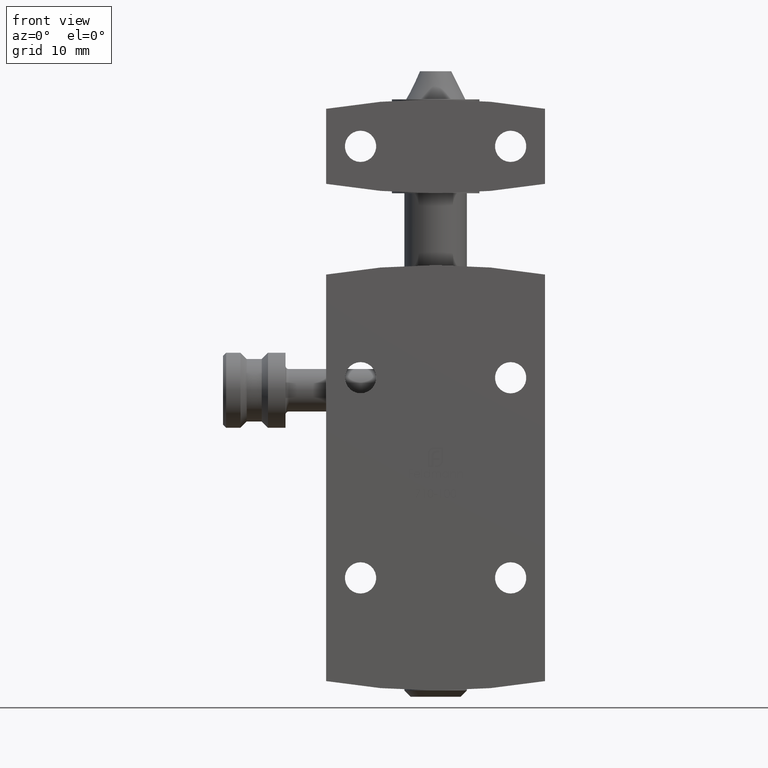
[diagram: clean part render]
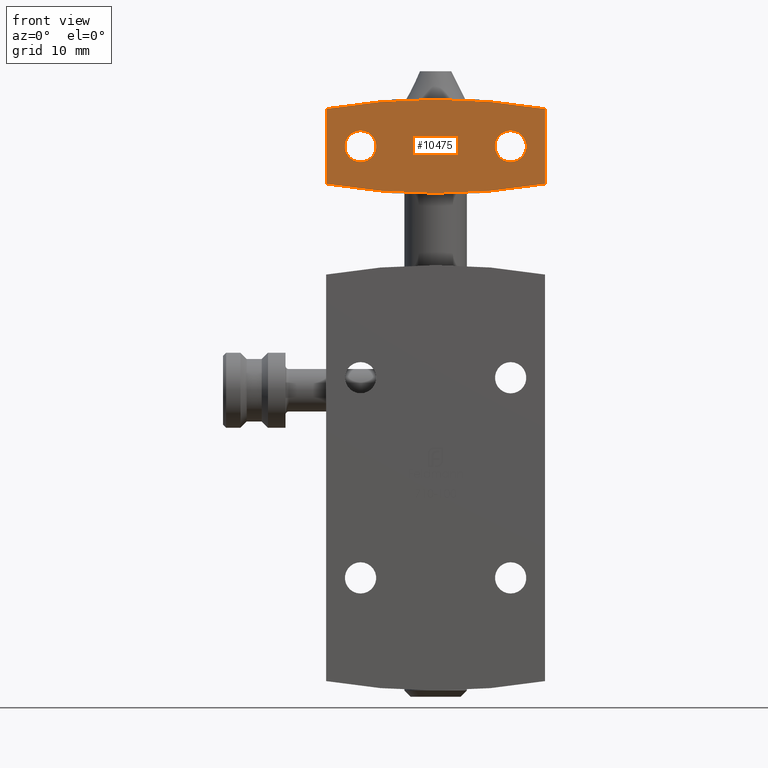
[diagram: same view with one face highlighted and labeled with its STEP entity id]
A machine part, front view. The second image highlights one B-rep face of the part: STEP entity #10475.
In plain terms, the highlighted planar face has unit normal (0, 1, 0).
Its self-contained STEP definition (entity closure, byte-faithful):
#379 = VERTEX_POINT ( 'NONE', #8350 ) ;
#1290 = EDGE_CURVE ( 'NONE', #379, #379, #1424, .T. ) ;
#1424 = CIRCLE ( 'NONE', #6433, 2.500000000000000000 ) ;
#1482 = EDGE_CURVE ( 'NONE', #1718, #6369, #5065, .T. ) ;
#1671 = CARTESIAN_POINT ( 'NONE',  ( -17.50000000000000000, 0.000000000000000000, 5.999999999999990230 ) ) ;
#1718 = VERTEX_POINT ( 'NONE', #2961 ) ;
#2651 = DIRECTION ( 'NONE',  ( 0.000000000000000000, 1.000000000000000000, 0.000000000000000000 ) ) ;
#2699 = VECTOR ( 'NONE', #15099, 1000.000000000000000 ) ;
#2961 = CARTESIAN_POINT ( 'NONE',  ( -17.50000000000000000, 0.000000000000000000, -5.999999999999990230 ) ) ;
#3391 = CARTESIAN_POINT ( 'NONE',  ( -2.573905222315729581E-25, 0.000000000000000000, -95.33333333333305859 ) ) ;
#3462 = CARTESIAN_POINT ( 'NONE',  ( -17.50000000000000000, 0.000000000000000000, 5.999999999999990230 ) ) ;
#3472 = CARTESIAN_POINT ( 'NONE',  ( 17.50000000000000000, 0.000000000000000000, -5.999999999999999112 ) ) ;
#3553 = DIRECTION ( 'NONE',  ( 0.000000000000000000, 0.000000000000000000, 1.000000000000000000 ) ) ;
#3851 = ORIENTED_EDGE ( 'NONE', *, *, #11259, .F. ) ;
#4083 = VECTOR ( 'NONE', #4546, 1000.000000000000000 ) ;
#4311 = EDGE_LOOP ( 'NONE', ( #4872, #4848, #14581, #3851 ) ) ;
#4483 = DIRECTION ( 'NONE',  ( 0.000000000000000000, -0.000000000000000000, 1.000000000000000000 ) ) ;
#4546 = DIRECTION ( 'NONE',  ( -0.000000000000000000, -0.000000000000000000, -1.000000000000000000 ) ) ;
#4795 = DIRECTION ( 'NONE',  ( 0.000000000000000000, 1.000000000000000000, 0.000000000000000000 ) ) ;
#4848 = ORIENTED_EDGE ( 'NONE', *, *, #1482, .F. ) ;
#4872 = ORIENTED_EDGE ( 'NONE', *, *, #9986, .F. ) ;
#5065 = LINE ( 'NONE', #3462, #2699 ) ;
#5358 = ORIENTED_EDGE ( 'NONE', *, *, #1290, .T. ) ;
#5593 = ORIENTED_EDGE ( 'NONE', *, *, #10986, .T. ) ;
#5811 = VERTEX_POINT ( 'NONE', #11039 ) ;
#6369 = VERTEX_POINT ( 'NONE', #1671 ) ;
#6400 = AXIS2_PLACEMENT_3D ( 'NONE', #11825, #2651, #7196 ) ;
#6427 = CARTESIAN_POINT ( 'NONE',  ( 17.50000000000000000, 0.000000000000000000, 6.000000000000000000 ) ) ;
#6433 = AXIS2_PLACEMENT_3D ( 'NONE', #8193, #12724, #3553 ) ;
#6971 = AXIS2_PLACEMENT_3D ( 'NONE', #3391, #11494, #10423 ) ;
#7196 = DIRECTION ( 'NONE',  ( 0.000000000000000000, 0.000000000000000000, 1.000000000000000000 ) ) ;
#7456 = DIRECTION ( 'NONE',  ( 0.000000000000000000, 0.000000000000000000, -1.000000000000000000 ) ) ;
#7768 = AXIS2_PLACEMENT_3D ( 'NONE', #9469, #4795, #4483 ) ;
#8193 = CARTESIAN_POINT ( 'NONE',  ( -11.99999999999999822, 0.000000000000000000, 0.000000000000000000 ) ) ;
#8288 = LINE ( 'NONE', #3472, #4083 ) ;
#8349 = AXIS2_PLACEMENT_3D ( 'NONE', #12201, #9787, #7456 ) ;
#8350 = CARTESIAN_POINT ( 'NONE',  ( -11.99999999999999822, 0.000000000000000000, 2.500000000000000000 ) ) ;
#8386 = PLANE ( 'NONE',  #7768 ) ;
#8790 = EDGE_CURVE ( 'NONE', #12323, #1718, #12023, .T. ) ;
#9376 = EDGE_LOOP ( 'NONE', ( #5593 ) ) ;
#9459 = FACE_BOUND ( 'NONE', #9376, .T. ) ;
#9469 = CARTESIAN_POINT ( 'NONE',  ( -2.573905222315729581E-25, 0.000000000000000000, -95.33333333333305859 ) ) ;
#9787 = DIRECTION ( 'NONE',  ( 0.000000000000000000, 1.000000000000000000, -0.000000000000000000 ) ) ;
#9986 = EDGE_CURVE ( 'NONE', #6369, #10105, #14602, .T. ) ;
#10105 = VERTEX_POINT ( 'NONE', #6427 ) ;
#10423 = DIRECTION ( 'NONE',  ( 0.000000000000000000, 0.000000000000000000, 1.000000000000000000 ) ) ;
#10475 = ADVANCED_FACE ( 'NONE', ( #12402, #9459, #10746 ), #8386, .F. ) ;
#10544 = CIRCLE ( 'NONE', #6400, 2.500000000000000000 ) ;
#10746 = FACE_BOUND ( 'NONE', #14832, .T. ) ;
#10986 = EDGE_CURVE ( 'NONE', #5811, #5811, #10544, .T. ) ;
#11039 = CARTESIAN_POINT ( 'NONE',  ( 12.00000000000000178, 0.000000000000000000, 2.499999999999996891 ) ) ;
#11259 = EDGE_CURVE ( 'NONE', #10105, #12323, #8288, .T. ) ;
#11494 = DIRECTION ( 'NONE',  ( 0.000000000000000000, 1.000000000000000000, 0.000000000000000000 ) ) ;
#11825 = CARTESIAN_POINT ( 'NONE',  ( 12.00000000000000178, 0.000000000000000000, -2.939152317953647894E-15 ) ) ;
#12023 = CIRCLE ( 'NONE', #8349, 102.8333333333330586 ) ;
#12201 = CARTESIAN_POINT ( 'NONE',  ( 1.180209869920498131E-26, 0.000000000000000000, 95.33333333333305859 ) ) ;
#12323 = VERTEX_POINT ( 'NONE', #13999 ) ;
#12402 = FACE_OUTER_BOUND ( 'NONE', #4311, .T. ) ;
#12724 = DIRECTION ( 'NONE',  ( 0.000000000000000000, 1.000000000000000000, 0.000000000000000000 ) ) ;
#13999 = CARTESIAN_POINT ( 'NONE',  ( 17.49999999999998579, 0.000000000000000000, -5.999999999999991118 ) ) ;
#14581 = ORIENTED_EDGE ( 'NONE', *, *, #8790, .F. ) ;
#14602 = CIRCLE ( 'NONE', #6971, 102.8333333333330586 ) ;
#14832 = EDGE_LOOP ( 'NONE', ( #5358 ) ) ;
#15099 = DIRECTION ( 'NONE',  ( -0.000000000000000000, -0.000000000000000000, 1.000000000000000000 ) ) ;